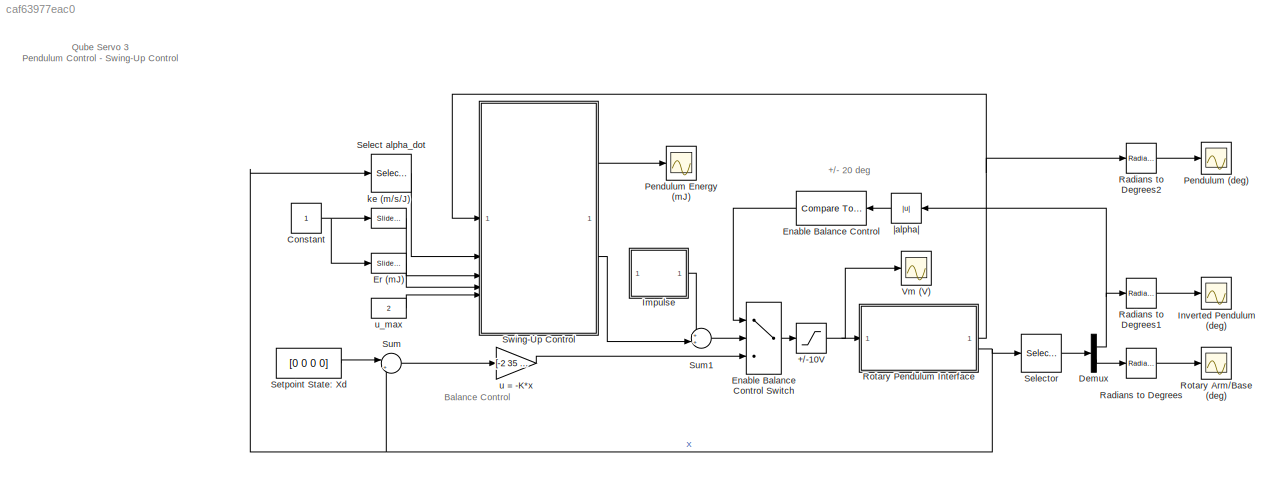
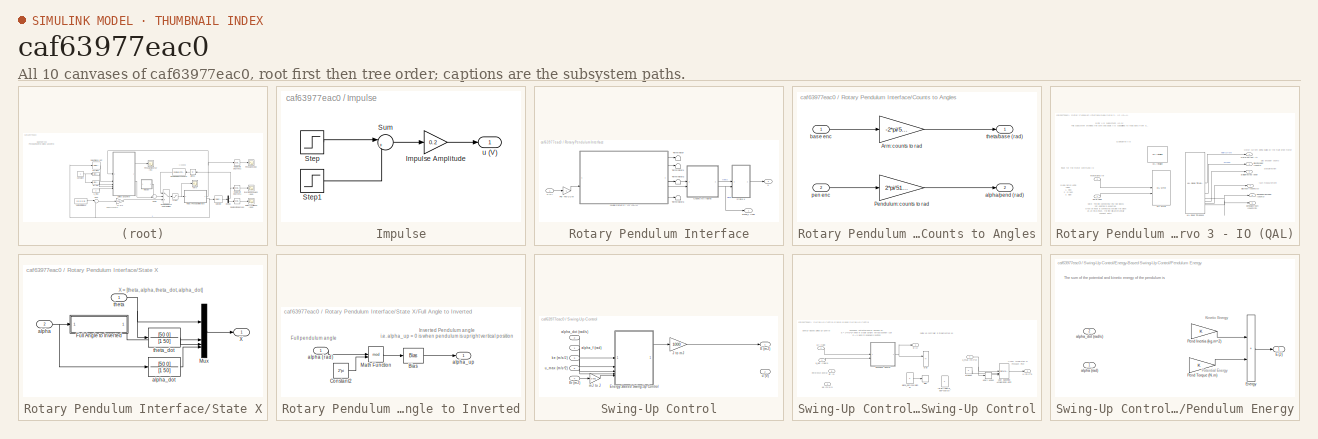
[diagram: thumbnail index - all 10 canvases of the model, root first then tree order]
MODEL slx_caf63977eac0
KIND model
CONFIG AbsTol = auto
CONFIG EnableMultiTasking = on
CONFIG FixedStep = 0.002
CONFIG MaxStep = auto
CONFIG MinStep = auto
CONFIG RelTol = 1e-3
CONFIG SampleTimeConstraint = Unconstrained
CONFIG SolverName = ode4
CONFIG StartTime = 0.0
CONFIG StopTime = inf
BLOCK [Saturate] +//-10V
  LowerLimit = -10
  UpperLimit = 10
BLOCK [Constant] Constant
BLOCK [Demux] Demux
  Outputs = 2
BLOCK [Reference] Enable Balance Control  REF=simulink/Logic and Bit
Operations/Compare
To Constant
  SourceBlock = simulink/Logic and Bit\nOperations/Compare\nTo Constant
  SourceType = Compare To Constant
BLOCK [MultiPortSwitch] Enable Balance Control Switch
  DataPortOrder = Zero-based contiguous
  InputSameDT = off
  Inputs = 2
  SaturateOnIntegerOverflow = off
  zeroidx = on
BLOCK [Reference] Er (mJ)  REF=simulink/Math
Operations/Slider
Gain
  SourceBlock = simulink/Math\nOperations/Slider\nGain
  SourceType = Slider Gain
BLOCK [SubSystem] Impulse
BLOCK [Gain] Impulse/Impulse Amplitude
  Gain = 0.2
BLOCK [Step] Impulse/Step
  SampleTime = 0
BLOCK [Step] Impulse/Step1
  After = -1
  SampleTime = 0
  Time = 1.1
BLOCK [Sum] Impulse/Sum
  Inputs = |++
BLOCK [Outport] Impulse/u (V)
  VectorParamsAs1DForOutWhenUnconnected = off
BLOCK [Scope] Inverted Pendulum (deg)
  Floating = off
  NumInputPorts = 1
  ScopeSpecificationString = Simulink.scopes.TimeScopeBlockCfg('CurrentConfiguration', extmgr.ConfigurationSet(extmgr.Configuration('Core','General UI',true),extmgr.Configuration('Core','Source UI',true),extmgr.Configuration('Sources','WiredSimulink',true,'DataLoggingVariableName','ScopeData1'),extmgr.Configuration('Visuals','Time Domain',true,'SerializedDisplays',{struct('MinYLimReal','-0.43945','MaxYLimReal','0.43945','YLab...<+1387ch>
BLOCK [Scope] Pendulum (deg)
  Floating = off
  NumInputPorts = 1
  ScopeSpecificationString = Simulink.scopes.TimeScopeBlockCfg('CurrentConfiguration', extmgr.ConfigurationSet(extmgr.Configuration('Core','General UI',true),extmgr.Configuration('Core','Source UI',true),extmgr.Configuration('Sources','WiredSimulink',true,'DataLoggingVariableName','ScopeData1'),extmgr.Configuration('Visuals','Time Domain',true,'SerializedDisplays',{struct('MinYLimReal','179.56055','MaxYLimReal','180.43945','Y...<+1431ch>
BLOCK [Scope] Pendulum Energy (mJ)
  Floating = off
  NumInputPorts = 1
  ScopeSpecificationString = Simulink.scopes.TimeScopeBlockCfg('CurrentConfiguration', extmgr.ConfigurationSet(extmgr.Configuration('Core','General UI',true),extmgr.Configuration('Core','Source UI',true),extmgr.Configuration('Sources','WiredSimulink',true,'DataLoggingVariableName','ScopeData3'),extmgr.Configuration('Visuals','Time Domain',true,'SerializedDisplays',{struct('MinYLimReal','30.37142','MaxYLimReal','30.37267','YLa...<+1422ch>
BLOCK [Reference] Radians to Degrees  REF=simulink_extras/Transformations/Radians
to Degrees
  SourceBlock = simulink_extras/Transformations/Radians\nto Degrees
  SourceType = RadiansToDegrees
BLOCK [Reference] Radians to Degrees1  REF=simulink_extras/Transformations/Radians
to Degrees
  SourceBlock = simulink_extras/Transformations/Radians\nto Degrees
  SourceType = RadiansToDegrees
BLOCK [Reference] Radians to Degrees2  REF=simulink_extras/Transformations/Radians
to Degrees
  SourceBlock = simulink_extras/Transformations/Radians\nto Degrees
  SourceType = RadiansToDegrees
BLOCK [Scope] Rotary Arm//Base (deg)
  Floating = off
  NumInputPorts = 1
  ScopeSpecificationString = Simulink.scopes.TimeScopeBlockCfg('CurrentConfiguration', extmgr.ConfigurationSet(extmgr.Configuration('Core','General UI',true),extmgr.Configuration('Core','Source UI',true),extmgr.Configuration('Sources','WiredSimulink',true,'DataLoggingVariableName','ScopeData2'),extmgr.Configuration('Visuals','Time Domain',true,'SerializedDisplays',{struct('MinYLimReal','-5.64697','MaxYLimReal','-0.15381','YLa...<+1408ch>
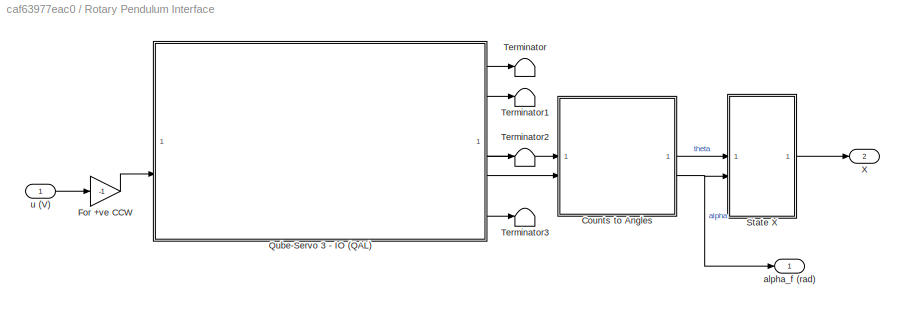
BLOCK [SubSystem] Rotary Pendulum Interface
BLOCK [SubSystem] Rotary Pendulum Interface/Counts to Angles
BLOCK [Gain] Rotary Pendulum Interface/Counts to Angles/Arm: counts to rad
  Gain = -2*pi/512/4
BLOCK [Gain] Rotary Pendulum Interface/Counts to Angles/Pendulum: counts to rad
  Gain = 2*pi/512/4
BLOCK [Outport] Rotary Pendulum Interface/Counts to Angles/alpha//pend (rad)
  Port = 2
  VectorParamsAs1DForOutWhenUnconnected = off
BLOCK [Inport] Rotary Pendulum Interface/Counts to Angles/base enc
BLOCK [Inport] Rotary Pendulum Interface/Counts to Angles/pen enc
  Port = 2
BLOCK [Outport] Rotary Pendulum Interface/Counts to Angles/theta//base (rad)
  VectorParamsAs1DForOutWhenUnconnected = off
BLOCK [Gain] Rotary Pendulum Interface/For +ve CCW
  Gain = -1
BLOCK [SubSystem] Rotary Pendulum Interface/Qube-Servo 3 - IO (QAL)
  CopyFcn = set_param(gcbh,'LinkStatus','none');
  UserDataPersistent = on
BLOCK [Reference] Rotary Pendulum Interface/Qube-Servo 3 - IO (QAL)/HIL Initialize  REF=quarc_library/Data Acquisition/Generic/Configuration/HIL Initialize
  AttributesFormatString = %<object_name> (%<board_type>-%<board_number>)
  SourceBlock = quarc_library/Data Acquisition/Generic/Configuration/HIL Initialize
  SourceProductName = QUARC Targets
  SourceType = HIL Initialize
  UserDataPersistent = on
BLOCK [Reference] Rotary Pendulum Interface/Qube-Servo 3 - IO (QAL)/HIL Read Timebase  REF=quarc_library/Data Acquisition/Generic/Timebases/HIL Read
Timebase
  AttributesFormatString = (%<object_name>)
  SourceBlock = quarc_library/Data Acquisition/Generic/Timebases/HIL Read\nTimebase
  SourceProductName = QUARC Targets
  SourceType = HIL Read Timebase
  UserDataPersistent = on
BLOCK [Reference] Rotary Pendulum Interface/Qube-Servo 3 - IO (QAL)/HIL Write  REF=quarc_library/Data Acquisition/Generic/Immediate I//O/HIL Write
  AttributesFormatString = (%<object_name>)
  SourceBlock = quarc_library/Data Acquisition/Generic/Immediate I//O/HIL Write
  SourceProductName = QUARC Targets
  SourceType = HIL Write
  UserDataPersistent = on
BLOCK [Inport] Rotary Pendulum Interface/Qube-Servo 3 - IO (QAL)/RGB LEDs
BLOCK [Outport] Rotary Pendulum Interface/Qube-Servo 3 - IO (QAL)/StallDetected (bool)
  Port = 2
  VectorParamsAs1DForOutWhenUnconnected = off
BLOCK [Outport] Rotary Pendulum Interface/Qube-Servo 3 - IO (QAL)/discEncoder (counts)
  Port = 3
  VectorParamsAs1DForOutWhenUnconnected = off
BLOCK [Outport] Rotary Pendulum Interface/Qube-Servo 3 - IO (QAL)/discTach (counts//s)
  Port = 4
  VectorParamsAs1DForOutWhenUnconnected = off
BLOCK [Inport] Rotary Pendulum Interface/Qube-Servo 3 - IO (QAL)/motorCmd (V)
  Port = 2
BLOCK [Outport] Rotary Pendulum Interface/Qube-Servo 3 - IO (QAL)/motorCurrent (A)
  VectorParamsAs1DForOutWhenUnconnected = off
BLOCK [Outport] Rotary Pendulum Interface/Qube-Servo 3 - IO (QAL)/pendulumEncoder (counts)
  Port = 5
BLOCK [Outport] Rotary Pendulum Interface/Qube-Servo 3 - IO (QAL)/pendulumTach (counts／s)
  Port = 6
BLOCK [SubSystem] Rotary Pendulum Interface/State X
BLOCK [SubSystem] Rotary Pendulum Interface/State X/Full Angle to Inverted
BLOCK [Bias] Rotary Pendulum Interface/State X/Full Angle to Inverted/Bias
  Bias = -pi
  SaturateOnIntegerOverflow = off
BLOCK [Constant] Rotary Pendulum Interface/State X/Full Angle to Inverted/Constant2
  Value = 2*pi
BLOCK [Math] Rotary Pendulum Interface/State X/Full Angle to Inverted/Math Function
  Operator = mod
  SignedPower = on
BLOCK [Inport] Rotary Pendulum Interface/State X/Full Angle to Inverted/alpha (rad)
BLOCK [Outport] Rotary Pendulum Interface/State X/Full Angle to Inverted/alpha_up
  VectorParamsAs1DForOutWhenUnconnected = off
BLOCK [Mux] Rotary Pendulum Interface/State X/Mux
  DisplayOption = bar
BLOCK [Outport] Rotary Pendulum Interface/State X/X
  VectorParamsAs1DForOutWhenUnconnected = off
BLOCK [Inport] Rotary Pendulum Interface/State X/alpha
  Port = 2
BLOCK [TransferFcn] Rotary Pendulum Interface/State X/alpha_dot
  Denominator = [1 50]
  Numerator = [50 0]
BLOCK [Inport] Rotary Pendulum Interface/State X/theta
BLOCK [TransferFcn] Rotary Pendulum Interface/State X/theta_dot
  Denominator = [1 50]
  Numerator = [50 0]
BLOCK [Terminator] Rotary Pendulum Interface/Terminator
BLOCK [Terminator] Rotary Pendulum Interface/Terminator1
BLOCK [Terminator] Rotary Pendulum Interface/Terminator2
BLOCK [Terminator] Rotary Pendulum Interface/Terminator3
BLOCK [Outport] Rotary Pendulum Interface/X
  Port = 2
  VectorParamsAs1DForOutWhenUnconnected = off
BLOCK [Outport] Rotary Pendulum Interface/alpha_f (rad)
  VectorParamsAs1DForOutWhenUnconnected = off
BLOCK [Inport] Rotary Pendulum Interface/u (V)
BLOCK [Selector] Select alpha_dot
  IndexOptions = Index vector (dialog)
  Indices = [4]
  InputPortWidth = 4
  NameLocation = top
  OutputSizes = 1
BLOCK [Selector] Selector
  IndexOptions = Index vector (dialog)
  Indices = [2,1]
  InputPortWidth = 4
  OutputSizes = 1
BLOCK [Constant] Setpoint State: Xd
  Value = [0 0 0 0]
BLOCK [Sum] Sum
  Inputs = |+-
BLOCK [Sum] Sum1
  Inputs = ++|
BLOCK [SubSystem] Swing-Up Control
BLOCK [Outport] Swing-Up Control/E (mJ)
  VectorParamsAs1DForOutWhenUnconnected = off
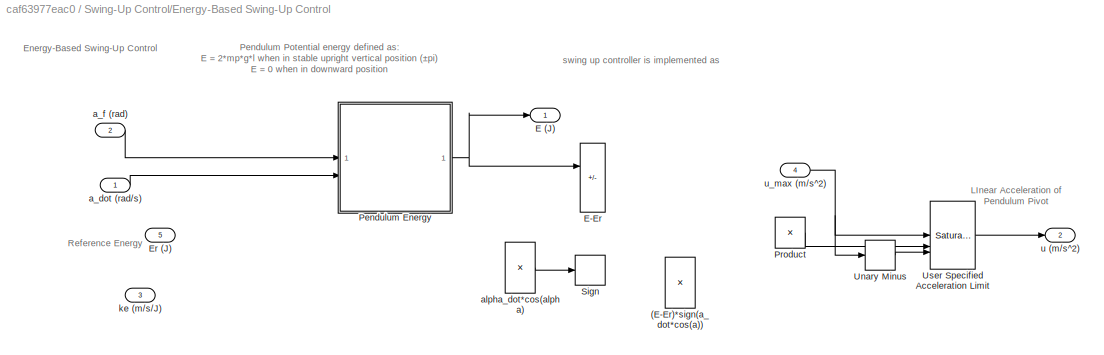
BLOCK [SubSystem] Swing-Up Control/Energy-Based Swing-Up Control
BLOCK [Product] Swing-Up Control/Energy-Based Swing-Up Control/(E-Er)*sign(a_dot*cos(a))
  RndMeth = Zero
BLOCK [Outport] Swing-Up Control/Energy-Based Swing-Up Control/E (J)
  NameLocation = top
  VectorParamsAs1DForOutWhenUnconnected = off
BLOCK [Sum] Swing-Up Control/Energy-Based Swing-Up Control/E-Er
  IconShape = rectangular
  Inputs = +-
BLOCK [Inport] Swing-Up Control/Energy-Based Swing-Up Control/Er (J)
  NameLocation = left
  Port = 5
BLOCK [SubSystem] Swing-Up Control/Energy-Based Swing-Up Control/Pendulum Energy
BLOCK [Outport] Swing-Up Control/Energy-Based Swing-Up Control/Pendulum Energy/E (J)
  VectorParamsAs1DForOutWhenUnconnected = off
BLOCK [Sum] Swing-Up Control/Energy-Based Swing-Up Control/Pendulum Energy/Energy
  IconShape = rectangular
  SaturateOnIntegerOverflow = on
BLOCK [Gain] Swing-Up Control/Energy-Based Swing-Up Control/Pendulum Energy/Pend Inertia (kg.m^2)
BLOCK [Gain] Swing-Up Control/Energy-Based Swing-Up Control/Pendulum Energy/Pend Torque (N.m)
BLOCK [Inport] Swing-Up Control/Energy-Based Swing-Up Control/Pendulum Energy/alpha (rad)
BLOCK [Inport] Swing-Up Control/Energy-Based Swing-Up Control/Pendulum Energy/alpha_dot (rad//s)
  Port = 2
BLOCK [Product] Swing-Up Control/Energy-Based Swing-Up Control/Product
  RndMeth = Zero
BLOCK [Signum] Swing-Up Control/Energy-Based Swing-Up Control/Sign
BLOCK [UnaryMinus] Swing-Up Control/Energy-Based Swing-Up Control/Unary Minus
BLOCK [Reference] Swing-Up Control/Energy-Based Swing-Up Control/User Specified Acceleration Limit  REF=simulink/Discontinuities/Saturation
Dynamic
  SourceBlock = simulink/Discontinuities/Saturation\nDynamic
  SourceType = Saturation Dynamic
BLOCK [Inport] Swing-Up Control/Energy-Based Swing-Up Control/a_dot (rad//s)
BLOCK [Inport] Swing-Up Control/Energy-Based Swing-Up Control/a_f (rad)
  Port = 2
BLOCK [Product] Swing-Up Control/Energy-Based Swing-Up Control/alpha_dot*cos(alpha)
  RndMeth = Zero
BLOCK [Inport] Swing-Up Control/Energy-Based Swing-Up Control/ke (m//s//J)
  Port = 3
BLOCK [Outport] Swing-Up Control/Energy-Based Swing-Up Control/u (m//s^2)
  Port = 2
  VectorParamsAs1DForOutWhenUnconnected = off
BLOCK [Inport] Swing-Up Control/Energy-Based Swing-Up Control/u_max (m//s^2)
  Port = 4
BLOCK [Inport] Swing-Up Control/Er (mJ)
  Port = 4
BLOCK [Gain] Swing-Up Control/J to mJ
  Gain = 1000
BLOCK [Inport] Swing-Up Control/alpha_dot (rad//s)
  Port = 2
BLOCK [Inport] Swing-Up Control/alpha_f (rad)
BLOCK [Inport] Swing-Up Control/ke (m//s//J)
  Port = 3
BLOCK [Gain] Swing-Up Control/mJ to J
  Gain = 0.001
BLOCK [Outport] Swing-Up Control/u (V)
  Port = 2
  VectorParamsAs1DForOutWhenUnconnected = off
BLOCK [Inport] Swing-Up Control/u_max (m//s^2)
  Port = 5
BLOCK [Scope] Vm (V)
  Floating = off
  NumInputPorts = 1
  ScopeSpecificationString = Simulink.scopes.TimeScopeBlockCfg('CurrentConfiguration', extmgr.ConfigurationSet(extmgr.Configuration('Core','General UI',true),extmgr.Configuration('Core','Source UI',true),extmgr.Configuration('Sources','WiredSimulink',true),extmgr.Configuration('Visuals','Time Domain',true,'SerializedDisplays',{struct('MinYLimReal','-0.91716','MaxYLimReal','0.99871','YLabelReal','','MinYLimMag','0.00000','MaxY...<+1347ch>
BLOCK [Reference] ke (m//s//J)  REF=simulink/Math
Operations/Slider
Gain
  SourceBlock = simulink/Math\nOperations/Slider\nGain
  SourceType = Slider Gain
BLOCK [Gain] u = -K*x
  Gain = [-2 35 -1.5 3]
  Multiplication = Matrix(K*u)
BLOCK [Constant] u_max
  Value = 2
BLOCK [Abs] |alpha|
  SaturateOnIntegerOverflow = off
ANNOTATION (root): +/- 20 deg
ANNOTATION (root): Qube Servo 3 Pendulum Control - Swing-Up Control
ANNOTATION (root): Balance Control
ANNOTATION Rotary Pendulum Interface/Qube-Servo 3 - IO (QAL): QCar I/O subsystem (v1.0): This subsystem provides the core and basic I/O capabilities to read data from and write data to the Qube Servo. The HIL Initialize block configures the IO settings, and the HIL Write and Read blocks are used for the actual IO.
ANNOTATION Rotary Pendulum Interface/Qube-Servo 3 - IO (QAL): Disc encoder counts
ANNOTATION Rotary Pendulum Interface/Qube-Servo 3 - IO (QAL): Stall Detection
ANNOTATION Rotary Pendulum Interface/Qube-Servo 3 - IO (QAL): tach measurement
ANNOTATION Rotary Pendulum Interface/Qube-Servo 3 - IO (QAL): Motor current being pulled by the main drive motor
ANNOTATION Rotary Pendulum Interface/Qube-Servo 3 - IO (QAL): Qube-Servo LEDs LEDs: 1. Red 2. Green 3. Blue
ANNOTATION Rotary Pendulum Interface/Qube-Servo 3 - IO (QAL): input for the motor command (V)
ANNOTATION Rotary Pendulum Interface/Qube-Servo 3 - IO (QAL): Note: The line connecting this two blocks not existing is expected. Once an input is connected outside the block as an RGB input, the line will automatically connect both.
ANNOTATION Rotary Pendulum Interface/Qube-Servo 3 - IO (QAL): QubeServo I/O
ANNOTATION Rotary Pendulum Interface/State X: X = [theta, alpha, theta_dot, alpha_dot]
ANNOTATION Rotary Pendulum Interface/State X/Full Angle to Inverted: Full pendulum angle
ANNOTATION Rotary Pendulum Interface/State X/Full Angle to Inverted: Inverted Pendulum angle i.e. alpha_up = 0 is when pendulum is upright vertical position
ANNOTATION Swing-Up Control/Energy-Based Swing-Up Control: Pendulum Potential energy defined as: E = 2*mp*g*l when in stable upright vertical position ( ±pi ) E = 0 when in downward position
ANNOTATION Swing-Up Control/Energy-Based Swing-Up Control: swing up controller is implemented as
ANNOTATION Swing-Up Control/Energy-Based Swing-Up Control: Energy-Based Swing-Up Control
ANNOTATION Swing-Up Control/Energy-Based Swing-Up Control: LInear Acceleration of Pendulum Pivot
ANNOTATION Swing-Up Control/Energy-Based Swing-Up Control: Reference Energy
ANNOTATION Swing-Up Control/Energy-Based Swing-Up Control/Pendulum Energy: The sum of the potential and kinetic energy of the pendulum is
ANNOTATION Swing-Up Control/Energy-Based Swing-Up Control/Pendulum Energy: Kinetic Energy
ANNOTATION Swing-Up Control/Energy-Based Swing-Up Control/Pendulum Energy: Potential Energy
NET +//-10V:1 -> Rotary Pendulum Interface:1, Vm (V):1
NET Constant:1 -> Er (mJ):1, ke (m//s//J):1
NET Demux:1 -> Radians to Degrees1:1, |alpha|:1
LINE Demux:2 -> Radians to Degrees:1
LINE Enable Balance Control Switch:1 -> +//-10V:1
LINE Enable Balance Control:1 -> Enable Balance Control Switch:1
LINE Er (mJ):1 -> Swing-Up Control:4
LINE Impulse/Impulse Amplitude:1 -> Impulse/u (V):1
LINE Impulse/Step1:1 -> Impulse/Sum:2
LINE Impulse/Step:1 -> Impulse/Sum:1
LINE Impulse/Sum:1 -> Impulse/Impulse Amplitude:1
LINE Impulse:1 -> Sum1:1
LINE Radians to Degrees1:1 -> Inverted Pendulum (deg):1
LINE Radians to Degrees2:1 -> Pendulum (deg):1
LINE Radians to Degrees:1 -> Rotary Arm//Base (deg):1
LINE Rotary Pendulum Interface/Counts to Angles/Arm: counts to rad:1 -> Rotary Pendulum Interface/Counts to Angles/theta//base (rad):1
LINE Rotary Pendulum Interface/Counts to Angles/Pendulum: counts to rad:1 -> Rotary Pendulum Interface/Counts to Angles/alpha//pend (rad):1
LINE Rotary Pendulum Interface/Counts to Angles/base enc:1 -> Rotary Pendulum Interface/Counts to Angles/Arm: counts to rad:1
LINE Rotary Pendulum Interface/Counts to Angles/pen enc:1 -> Rotary Pendulum Interface/Counts to Angles/Pendulum: counts to rad:1
LINE Rotary Pendulum Interface/Counts to Angles:1 -> Rotary Pendulum Interface/State X:1
NET Rotary Pendulum Interface/Counts to Angles:2 -> Rotary Pendulum Interface/State X:2, Rotary Pendulum Interface/alpha_f (rad):1
LINE Rotary Pendulum Interface/For +ve CCW:1 -> Rotary Pendulum Interface/Qube-Servo 3 - IO (QAL):2
LINE Rotary Pendulum Interface/Qube-Servo 3 - IO (QAL):1 -> Rotary Pendulum Interface/Terminator:1
LINE Rotary Pendulum Interface/Qube-Servo 3 - IO (QAL):2 -> Rotary Pendulum Interface/Terminator1:1
LINE Rotary Pendulum Interface/Qube-Servo 3 - IO (QAL):3 -> Rotary Pendulum Interface/Counts to Angles:1
LINE Rotary Pendulum Interface/Qube-Servo 3 - IO (QAL):4 -> Rotary Pendulum Interface/Terminator2:1
LINE Rotary Pendulum Interface/Qube-Servo 3 - IO (QAL):5 -> Rotary Pendulum Interface/Counts to Angles:2
LINE Rotary Pendulum Interface/Qube-Servo 3 - IO (QAL):6 -> Rotary Pendulum Interface/Terminator3:1
LINE Rotary Pendulum Interface/State X/Full Angle to Inverted/Bias:1 -> Rotary Pendulum Interface/State X/Full Angle to Inverted/alpha_up:1
LINE Rotary Pendulum Interface/State X/Full Angle to Inverted/Constant2:1 -> Rotary Pendulum Interface/State X/Full Angle to Inverted/Math Function:2
LINE Rotary Pendulum Interface/State X/Full Angle to Inverted/Math Function:1 -> Rotary Pendulum Interface/State X/Full Angle to Inverted/Bias:1
LINE Rotary Pendulum Interface/State X/Full Angle to Inverted/alpha (rad):1 -> Rotary Pendulum Interface/State X/Full Angle to Inverted/Math Function:1
LINE Rotary Pendulum Interface/State X/Full Angle to Inverted:1 -> Rotary Pendulum Interface/State X/Mux:2
LINE Rotary Pendulum Interface/State X/Mux:1 -> Rotary Pendulum Interface/State X/X:1
NET Rotary Pendulum Interface/State X/alpha:1 -> Rotary Pendulum Interface/State X/Full Angle to Inverted:1, Rotary Pendulum Interface/State X/alpha_dot:1
LINE Rotary Pendulum Interface/State X/alpha_dot:1 -> Rotary Pendulum Interface/State X/Mux:4
NET Rotary Pendulum Interface/State X/theta:1 -> Rotary Pendulum Interface/State X/Mux:1, Rotary Pendulum Interface/State X/theta_dot:1
LINE Rotary Pendulum Interface/State X/theta_dot:1 -> Rotary Pendulum Interface/State X/Mux:3
LINE Rotary Pendulum Interface/State X:1 -> Rotary Pendulum Interface/X:1
LINE Rotary Pendulum Interface/u (V):1 -> Rotary Pendulum Interface/For +ve CCW:1
NET Rotary Pendulum Interface:1 -> Radians to Degrees2:1, Swing-Up Control:1
NET Rotary Pendulum Interface:2 -> Select alpha_dot:1, Selector:1, Sum:2
LINE Select alpha_dot:1 -> Swing-Up Control:2
LINE Selector:1 -> Demux:1
LINE Setpoint State: Xd:1 -> Sum:1
LINE Sum1:1 -> Enable Balance Control Switch:2
LINE Sum:1 -> u = -K*x:1
LINE Swing-Up Control/Energy-Based Swing-Up Control/Pendulum Energy/Energy:1 -> Swing-Up Control/Energy-Based Swing-Up Control/Pendulum Energy/E (J):1
LINE Swing-Up Control/Energy-Based Swing-Up Control/Pendulum Energy/Pend Inertia (kg.m^2):1 -> Swing-Up Control/Energy-Based Swing-Up Control/Pendulum Energy/Energy:1
LINE Swing-Up Control/Energy-Based Swing-Up Control/Pendulum Energy/Pend Torque (N.m):1 -> Swing-Up Control/Energy-Based Swing-Up Control/Pendulum Energy/Energy:2
NET Swing-Up Control/Energy-Based Swing-Up Control/Pendulum Energy:1 -> Swing-Up Control/Energy-Based Swing-Up Control/E (J):1, Swing-Up Control/Energy-Based Swing-Up Control/E-Er:1
LINE Swing-Up Control/Energy-Based Swing-Up Control/Product:1 -> Swing-Up Control/Energy-Based Swing-Up Control/User Specified Acceleration Limit:2
LINE Swing-Up Control/Energy-Based Swing-Up Control/Unary Minus:1 -> Swing-Up Control/Energy-Based Swing-Up Control/User Specified Acceleration Limit:3
LINE Swing-Up Control/Energy-Based Swing-Up Control/User Specified Acceleration Limit:1 -> Swing-Up Control/Energy-Based Swing-Up Control/u (m//s^2):1
LINE Swing-Up Control/Energy-Based Swing-Up Control/a_dot (rad//s):1 -> Swing-Up Control/Energy-Based Swing-Up Control/Pendulum Energy:2
LINE Swing-Up Control/Energy-Based Swing-Up Control/a_f (rad):1 -> Swing-Up Control/Energy-Based Swing-Up Control/Pendulum Energy:1
LINE Swing-Up Control/Energy-Based Swing-Up Control/alpha_dot*cos(alpha):1 -> Swing-Up Control/Energy-Based Swing-Up Control/Sign:1
NET Swing-Up Control/Energy-Based Swing-Up Control/u_max (m//s^2):1 -> Swing-Up Control/Energy-Based Swing-Up Control/Unary Minus:1, Swing-Up Control/Energy-Based Swing-Up Control/User Specified Acceleration Limit:1
LINE Swing-Up Control/Energy-Based Swing-Up Control:1 -> Swing-Up Control/J to mJ:1
LINE Swing-Up Control/Er (mJ):1 -> Swing-Up Control/mJ to J:1
LINE Swing-Up Control/J to mJ:1 -> Swing-Up Control/E (mJ):1
LINE Swing-Up Control/alpha_dot (rad//s):1 -> Swing-Up Control/Energy-Based Swing-Up Control:1
LINE Swing-Up Control/alpha_f (rad):1 -> Swing-Up Control/Energy-Based Swing-Up Control:2
LINE Swing-Up Control/ke (m//s//J):1 -> Swing-Up Control/Energy-Based Swing-Up Control:3
LINE Swing-Up Control/mJ to J:1 -> Swing-Up Control/Energy-Based Swing-Up Control:5
LINE Swing-Up Control/u_max (m//s^2):1 -> Swing-Up Control/Energy-Based Swing-Up Control:4
LINE Swing-Up Control:1 -> Pendulum Energy (mJ):1
LINE Swing-Up Control:2 -> Sum1:2
LINE ke (m//s//J):1 -> Swing-Up Control:3
LINE u = -K*x:1 -> Enable Balance Control Switch:3
LINE u_max:1 -> Swing-Up Control:5
LINE |alpha|:1 -> Enable Balance Control:1
note: NET lines group one-source signal fan-out (src -> all destinations, sorted); 1:1 wires keep LINE
